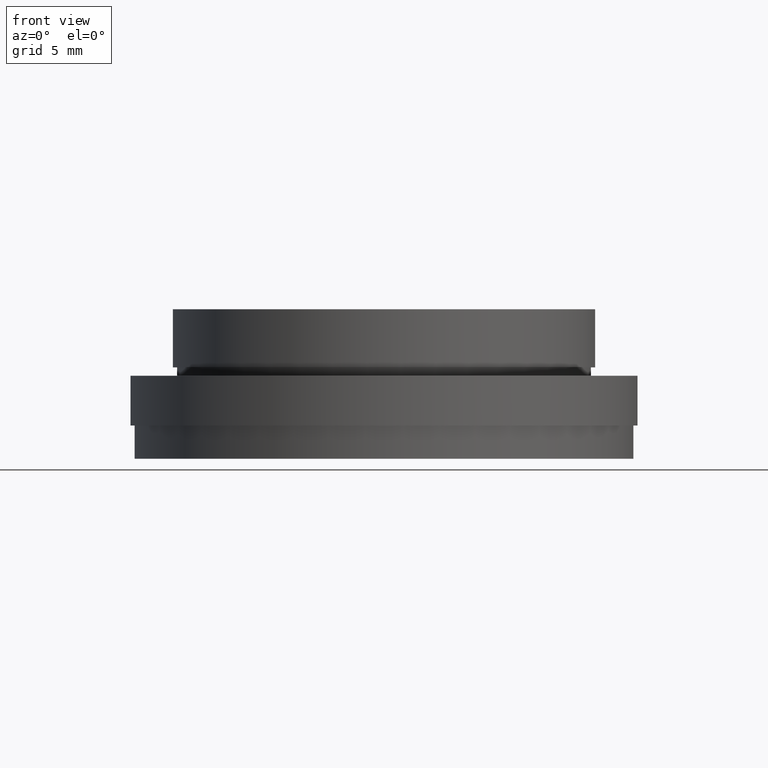
[diagram: clean part render]
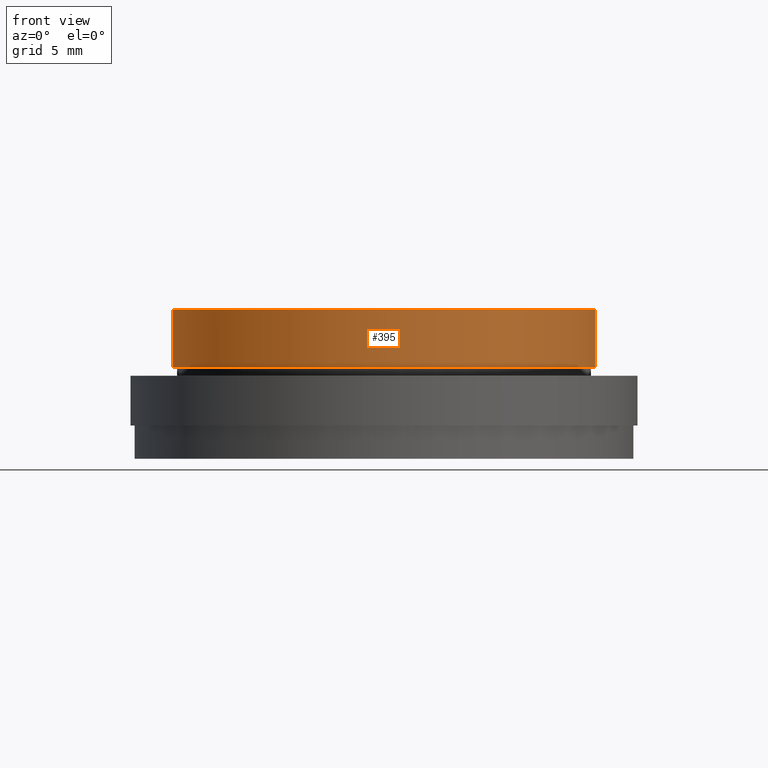
[diagram: same view with one face highlighted and labeled with its STEP entity id]
A machine part, front view. The second image highlights one B-rep face of the part: STEP entity #395.
In plain terms, the highlighted cylindrical surface (partial cylindrical patch) has radius 12.7 mm, axis along (-0, -0, 1).
Its self-contained STEP definition (entity closure, byte-faithful):
#28 = DIRECTION ( 'NONE',  ( -0.0000000000000000000, -0.0000000000000000000, 1.000000000000000000 ) ) ;
#30 = CIRCLE ( 'NONE', #105, 12.69999999999999900 ) ;
#35 = EDGE_CURVE ( 'NONE', #112, #673, #30, .T. ) ;
#90 = DIRECTION ( 'NONE',  ( -0.0000000000000000000, -0.0000000000000000000, 1.000000000000000000 ) ) ;
#105 = AXIS2_PLACEMENT_3D ( 'NONE', #358, #90, #163 ) ;
#112 = VERTEX_POINT ( 'NONE', #496 ) ;
#148 = FACE_OUTER_BOUND ( 'NONE', #404, .T. ) ;
#163 = DIRECTION ( 'NONE',  ( 1.000000000000000000, 0.0000000000000000000, 0.0000000000000000000 ) ) ;
#172 = DIRECTION ( 'NONE',  ( -0.0000000000000000000, -0.0000000000000000000, 1.000000000000000000 ) ) ;
#183 = DIRECTION ( 'NONE',  ( -0.0000000000000000000, -0.0000000000000000000, 1.000000000000000000 ) ) ;
#225 = ORIENTED_EDGE ( 'NONE', *, *, #296, .F. ) ;
#249 = AXIS2_PLACEMENT_3D ( 'NONE', #640, #183, #582 ) ;
#268 = AXIS2_PLACEMENT_3D ( 'NONE', #766, #822, #552 ) ;
#296 = EDGE_CURVE ( 'NONE', #370, #604, #319, .T. ) ;
#306 = CARTESIAN_POINT ( 'NONE',  ( -12.70000000000015900, 1.555301434917158000E-015, 0.0000000000000000000 ) ) ;
#319 = CIRCLE ( 'NONE', #249, 12.70000000000015700 ) ;
#357 = CARTESIAN_POINT ( 'NONE',  ( 12.70000000000007900, 0.0000000000000000000, 222.4624572051069700 ) ) ;
#358 = CARTESIAN_POINT ( 'NONE',  ( 0.0000000000000000000, 0.0000000000000000000, -3.500000000000003100 ) ) ;
#360 = ORIENTED_EDGE ( 'NONE', *, *, #645, .T. ) ;
#370 = VERTEX_POINT ( 'NONE', #306 ) ;
#389 = EDGE_CURVE ( 'NONE', #112, #370, #839, .T. ) ;
#395 = ADVANCED_FACE ( 'NONE', ( #148 ), #744, .T. ) ;
#396 = VECTOR ( 'NONE', #28, 1000.000000000000000 ) ;
#404 = EDGE_LOOP ( 'NONE', ( #411, #541, #360, #225 ) ) ;
#411 = ORIENTED_EDGE ( 'NONE', *, *, #389, .F. ) ;
#416 = LINE ( 'NONE', #357, #396 ) ;
#422 = CARTESIAN_POINT ( 'NONE',  ( 12.69999999999999900, 0.0000000000000000000, -3.500000000000003100 ) ) ;
#483 = VECTOR ( 'NONE', #172, 1000.000000000000000 ) ;
#496 = CARTESIAN_POINT ( 'NONE',  ( -12.69999999999999900, 1.555301434917143600E-015, -3.500000000000003100 ) ) ;
#541 = ORIENTED_EDGE ( 'NONE', *, *, #35, .T. ) ;
#552 = DIRECTION ( 'NONE',  ( 1.000000000000000000, 0.0000000000000000000, 0.0000000000000000000 ) ) ;
#582 = DIRECTION ( 'NONE',  ( 1.000000000000000000, 0.0000000000000000000, 0.0000000000000000000 ) ) ;
#604 = VERTEX_POINT ( 'NONE', #749 ) ;
#632 = CARTESIAN_POINT ( 'NONE',  ( -12.70000000000007900, 1.555301434917148300E-015, 222.4624572051069700 ) ) ;
#640 = CARTESIAN_POINT ( 'NONE',  ( 0.0000000000000000000, 0.0000000000000000000, 0.0000000000000000000 ) ) ;
#645 = EDGE_CURVE ( 'NONE', #673, #604, #416, .T. ) ;
#673 = VERTEX_POINT ( 'NONE', #422 ) ;
#744 = CYLINDRICAL_SURFACE ( 'NONE', #268, 12.70000000000007900 ) ;
#749 = CARTESIAN_POINT ( 'NONE',  ( 12.70000000000015700, 0.0000000000000000000, 0.0000000000000000000 ) ) ;
#766 = CARTESIAN_POINT ( 'NONE',  ( 0.0000000000000000000, 0.0000000000000000000, 222.4624572051069700 ) ) ;
#822 = DIRECTION ( 'NONE',  ( -0.0000000000000000000, -0.0000000000000000000, 1.000000000000000000 ) ) ;
#839 = LINE ( 'NONE', #632, #483 ) ;